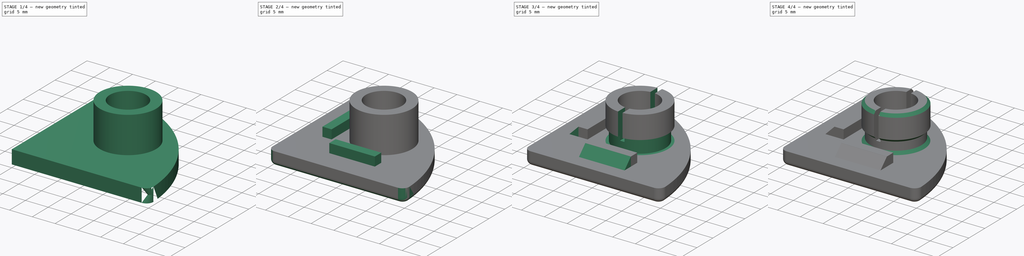
[diagram: build sequence overview — one tinted view per stage of 4, left to right]
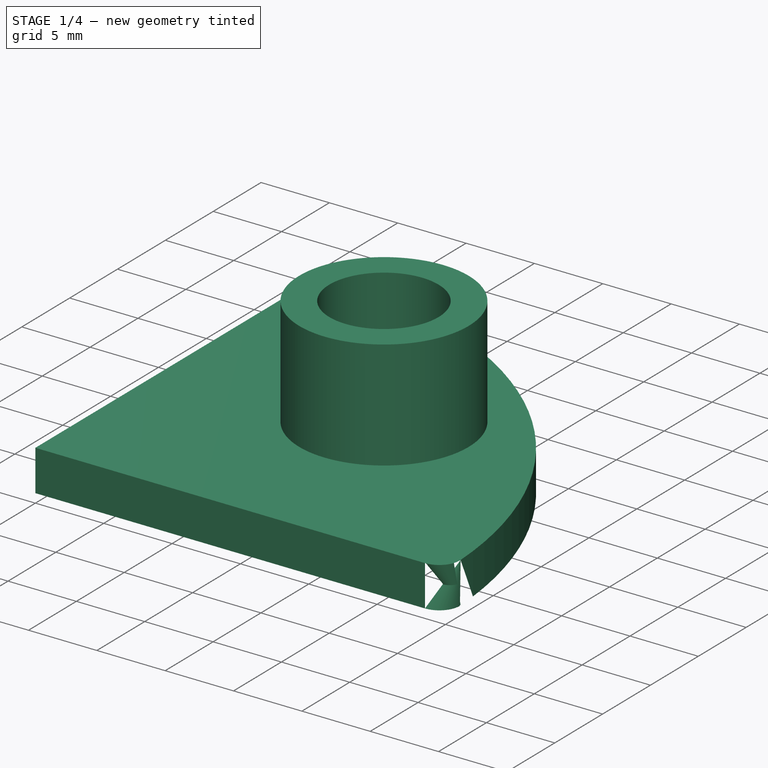
[diagram: stage 1 of 4 — iso view after this stage's code; geometry added in this stage tinted green]
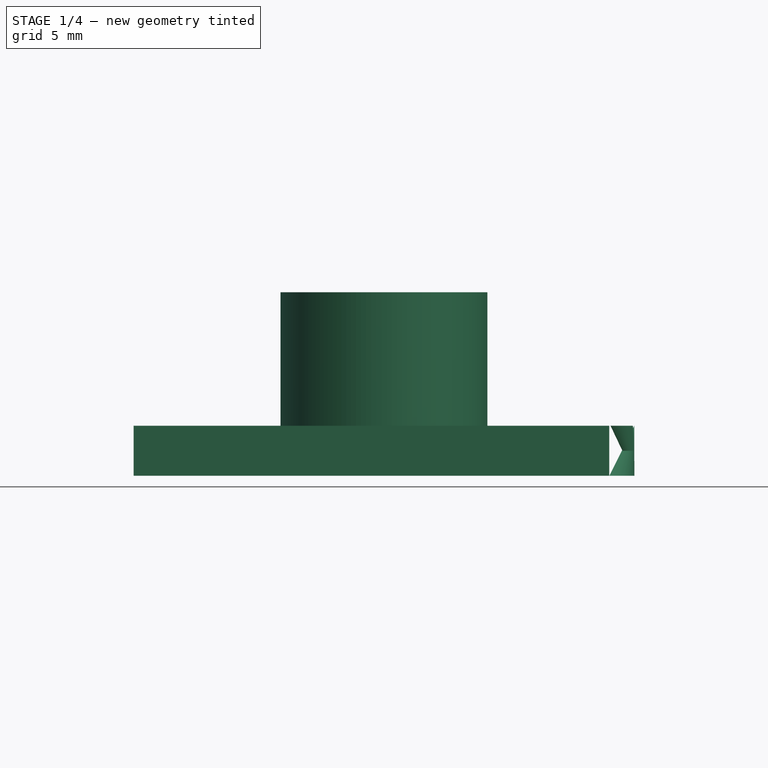
[diagram: stage 1 of 4 — front view after this stage's code; geometry added in this stage tinted green]
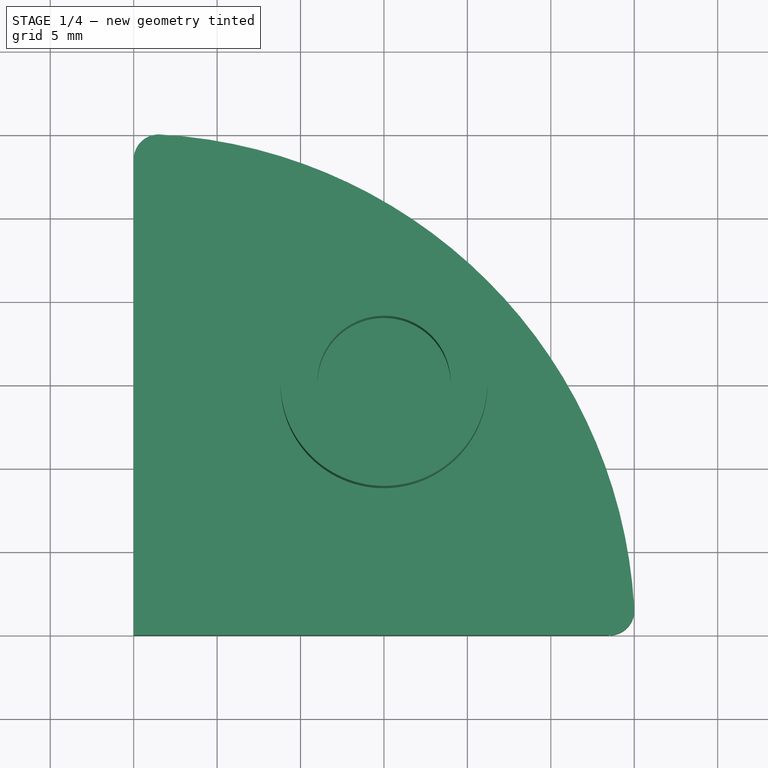
[diagram: stage 1 of 4 — top view after this stage's code; geometry added in this stage tinted green]
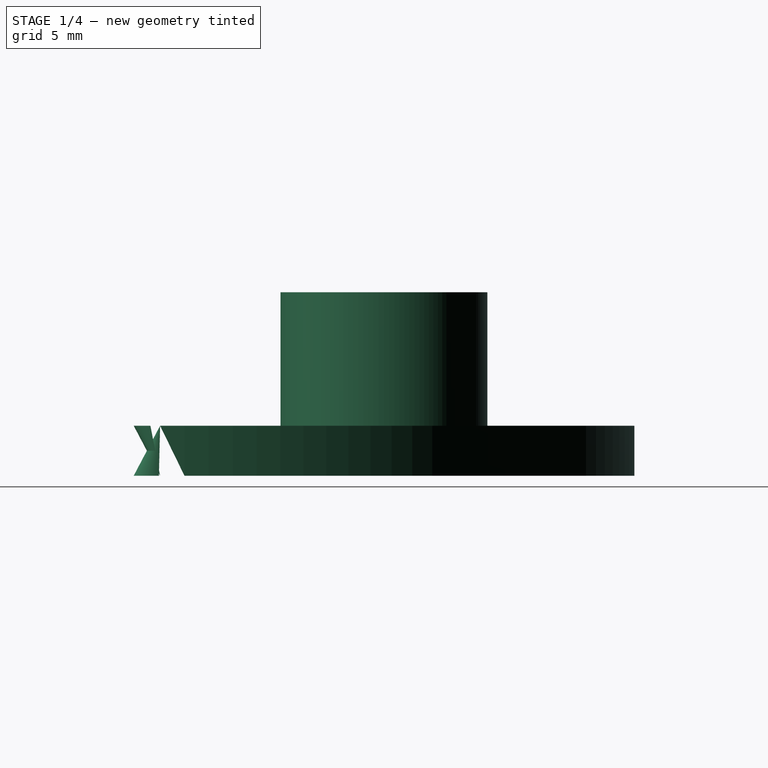
[diagram: stage 1 of 4 — right view after this stage's code; geometry added in this stage tinted green]
FCSTD DOCUMENT  (FreeCAD 0.17R13522 (Git))
Label: Cover_3030_rounded_botto_v2m
License: All rights reserved
LicenseURL: http://en.wikipedia.org/wiki/All_rights_reserved
objects: Sketcher::SketchObject×5, PartDesign::Pad×3, PartDesign::Chamfer×3, PartDesign::Fillet×2, PartDesign::Pocket×2, PartDesign::Body×1
note: 21 computed .brp shape members not serialized (recipe doc carries the construction recipe); baked Part::Feature solids carry a one-line shape summary decoded from their .brp

FEATURE [Sketcher::SketchObject] Sketch
  MapMode = 5
  Support = -> [XY_Plane]
  sketch-geometry (2):
    g0: Circle CenterX=15 CenterY=15 CenterZ=0 NormalX=0 NormalY=0 NormalZ=1 AngleXU=0 Radius=6.2
    g1: Circle CenterX=15 CenterY=15 CenterZ=0 NormalX=0 NormalY=0 NormalZ=1 AngleXU=0 Radius=4
  constraints (5):
    c: Radius(g0) = 6.2
    c: DistanceX(g0) = 15
    c: DistanceY(g0) = 15
    c: Coincident(g1,g0)
    c: Radius(g1) = 4
FEATURE [PartDesign::Pad] Pad
  Length = 8
  Length2 = 100
  Profile = -> Sketch
  Type = 0
FEATURE [Sketcher::SketchObject] Sketch001
  MapMode = 5
  Placement = pos=(0,0,0) rot=(1,0,0;3.14159rad)
  Support = -> [Pad]
  sketch-geometry (5):
    g0: LineSegment StartX=0 StartY=-28.5047 StartZ=0 EndX=0 EndY=0 EndZ=0
    g1: LineSegment StartX=0 StartY=0 StartZ=0 EndX=28.5047 EndY=0 EndZ=0
    g2: ArcOfCircle CenterX=-0.11 CenterY=0.11 CenterZ=0 NormalX=0 NormalY=0 NormalZ=1 AngleXU=0 Radius=30.16 StartAngle=4.76859 EndAngle=6.22698
    g3: ArcOfCircle CenterX=1.5 CenterY=-28.5047 CenterZ=0 NormalX=0 NormalY=0 NormalZ=1 AngleXU=0 Radius=1.5 StartAngle=3.14159 EndAngle=4.76859
    g4: ArcOfCircle CenterX=28.5047 CenterY=-1.5 CenterZ=0 NormalX=0 NormalY=0 NormalZ=1 AngleXU=0 Radius=1.5 StartAngle=6.22698 EndAngle=7.85398
  constraints (14):
    c: PointOnObject(g0,g-2)
    c: Vertical(g0)
    c: Coincident(g1,g-1)
    c: PointOnObject(g1,g-1)
    c: Radius(g2) = 30.16
    c: DistanceX(g2) = -0.11
    c: DistanceY(g2) = 0.11
    c: Equal(g3,g4)
    c: Radius(g3) = 1.5
    c: Tangent(g3,g2) = -1.5708
    c: Tangent(g4,g2) = -1.5708
    c: Tangent(g3,g0) = 1.5708
    c: Tangent(g4,g1) = 1.5708
    c: Equal(g1,g0)
FEATURE [PartDesign::Pad] Pad001
  BaseFeature = -> Pad
  Length = 3
  Length2 = 100
  Profile = -> Sketch001
  Type = 0
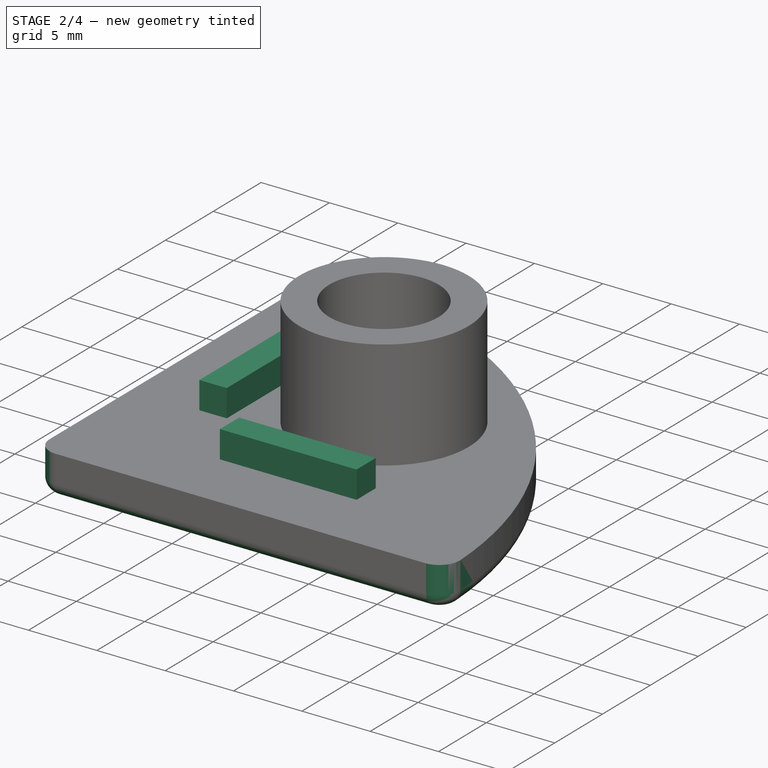
[diagram: stage 2 of 4 — iso view after this stage's code; geometry added in this stage tinted green]
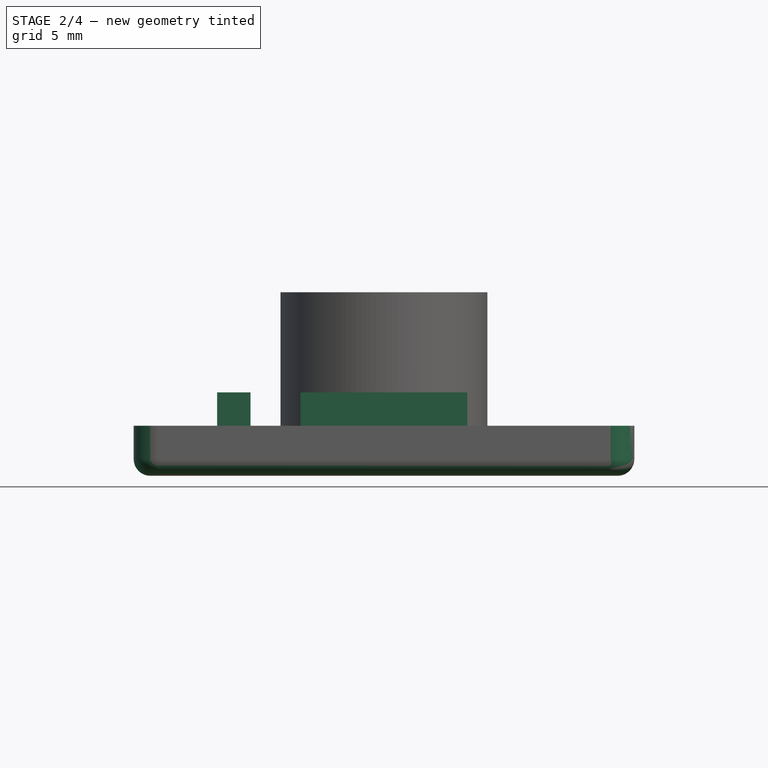
[diagram: stage 2 of 4 — front view after this stage's code; geometry added in this stage tinted green]
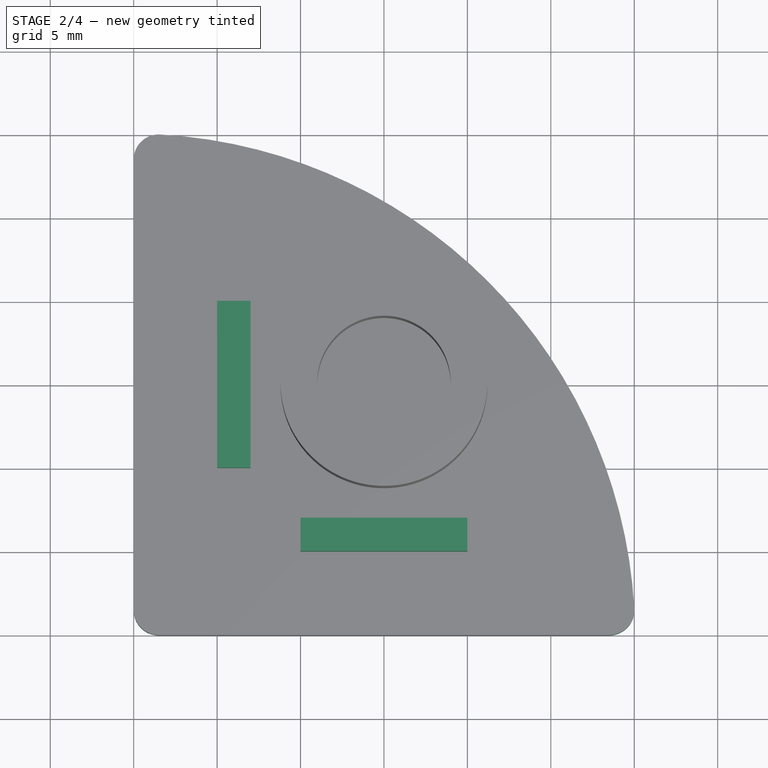
[diagram: stage 2 of 4 — top view after this stage's code; geometry added in this stage tinted green]
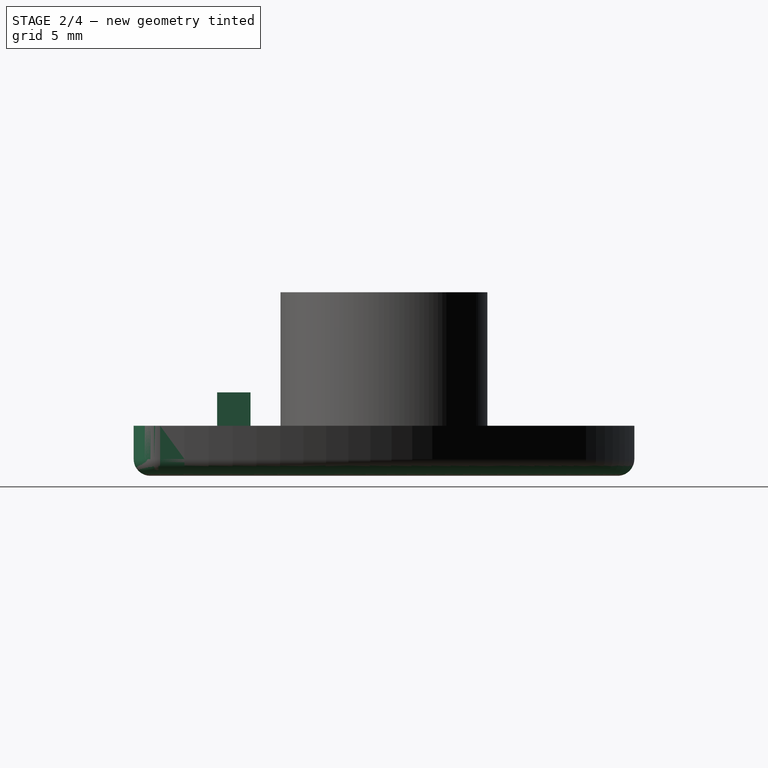
[diagram: stage 2 of 4 — right view after this stage's code; geometry added in this stage tinted green]
FEATURE [PartDesign::Fillet] Fillet
  Base = -> Pad001 [Edge15]
  BaseFeature = -> Pad001
  Radius = 1.5
FEATURE [PartDesign::Fillet] Fillet001
  Base = -> Fillet [Face9]
  BaseFeature = -> Fillet
  Radius = 1
FEATURE [Sketcher::SketchObject] Sketch002
  MapMode = 5
  Support = -> [Fillet001]
  sketch-geometry (8):
    g0: LineSegment StartX=5 StartY=20 StartZ=0 EndX=7 EndY=20 EndZ=0
    g1: LineSegment StartX=7 StartY=20 StartZ=0 EndX=7 EndY=10 EndZ=0
    g2: LineSegment StartX=7 StartY=10 StartZ=0 EndX=5 EndY=10 EndZ=0
    g3: LineSegment StartX=5 StartY=10 StartZ=0 EndX=5 EndY=20 EndZ=0
    g4: LineSegment StartX=10 StartY=7 StartZ=0 EndX=20 EndY=7 EndZ=0
    g5: LineSegment StartX=20 StartY=7 StartZ=0 EndX=20 EndY=5 EndZ=0
    g6: LineSegment StartX=20 StartY=5 StartZ=0 EndX=10 EndY=5 EndZ=0
    g7: LineSegment StartX=10 StartY=5 StartZ=0 EndX=10 EndY=7 EndZ=0
  constraints (24):
    c: Coincident(g0,g1)
    c: Coincident(g1,g2)
    c: Coincident(g2,g3)
    c: Coincident(g3,g0)
    c: Horizontal(g0)
    c: Horizontal(g2)
    c: Vertical(g1)
    c: Vertical(g3)
    c: Coincident(g4,g5)
    c: Coincident(g5,g6)
    c: Coincident(g6,g7)
    c: Coincident(g7,g4)
    c: Horizontal(g4)
    c: Horizontal(g6)
    c: Vertical(g5)
    c: Vertical(g7)
    c: Equal(g3,g6)
    c: Equal(g2,g7)
    c: DistanceX(g1) = 7
    c: DistanceY(g1) = 10
    c: DistanceX(g4) = 10
    c: DistanceY(g4) = 7
    c: DistanceY(g3,g3) = 10
    c: DistanceX(g0,g0) = 2
FEATURE [PartDesign::Pad] Pad002
  BaseFeature = -> Fillet001
  Length = 2
  Length2 = 100
  Profile = -> Sketch002
  Type = 0
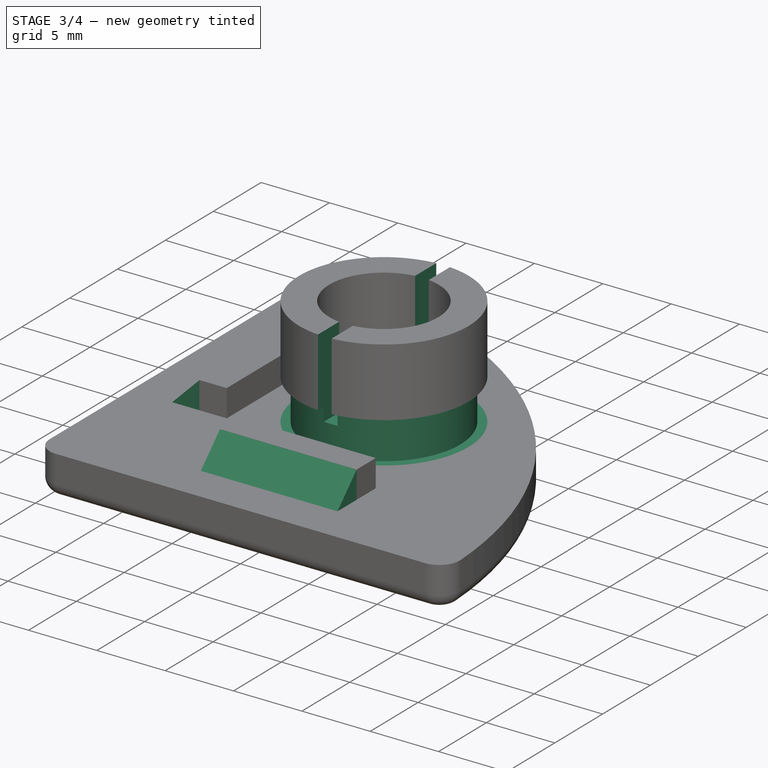
[diagram: stage 3 of 4 — iso view after this stage's code; geometry added in this stage tinted green]
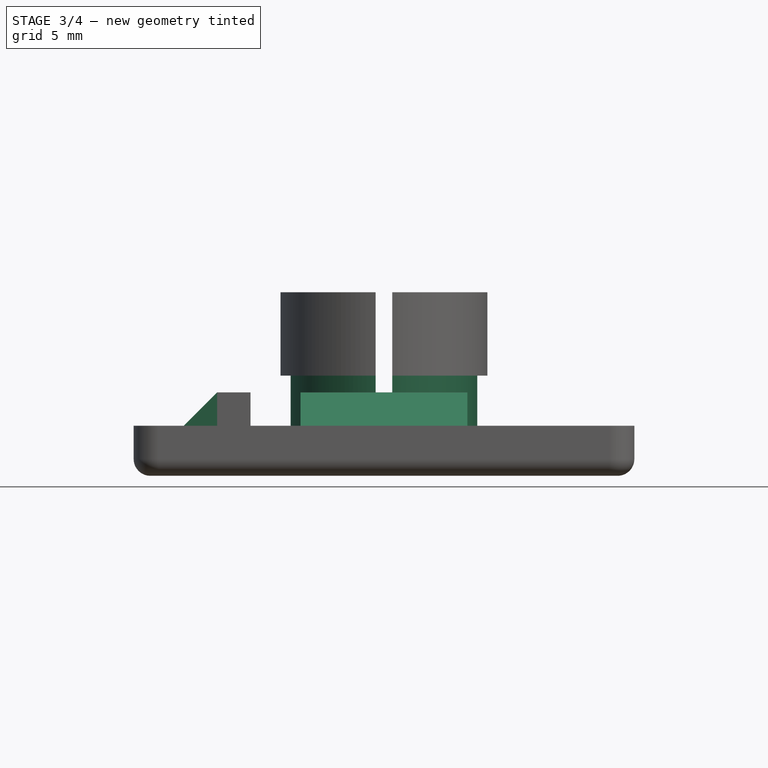
[diagram: stage 3 of 4 — front view after this stage's code; geometry added in this stage tinted green]
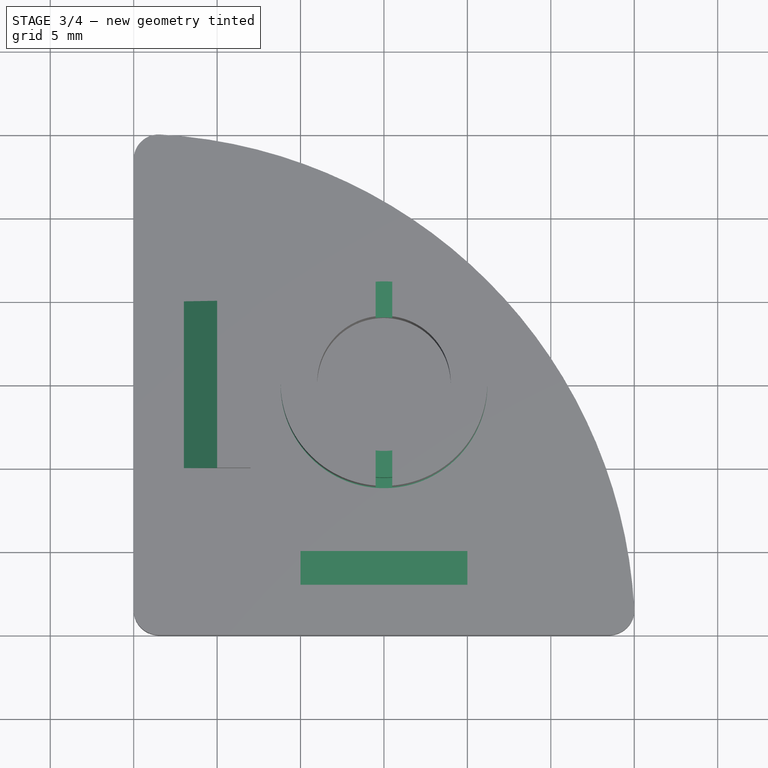
[diagram: stage 3 of 4 — top view after this stage's code; geometry added in this stage tinted green]
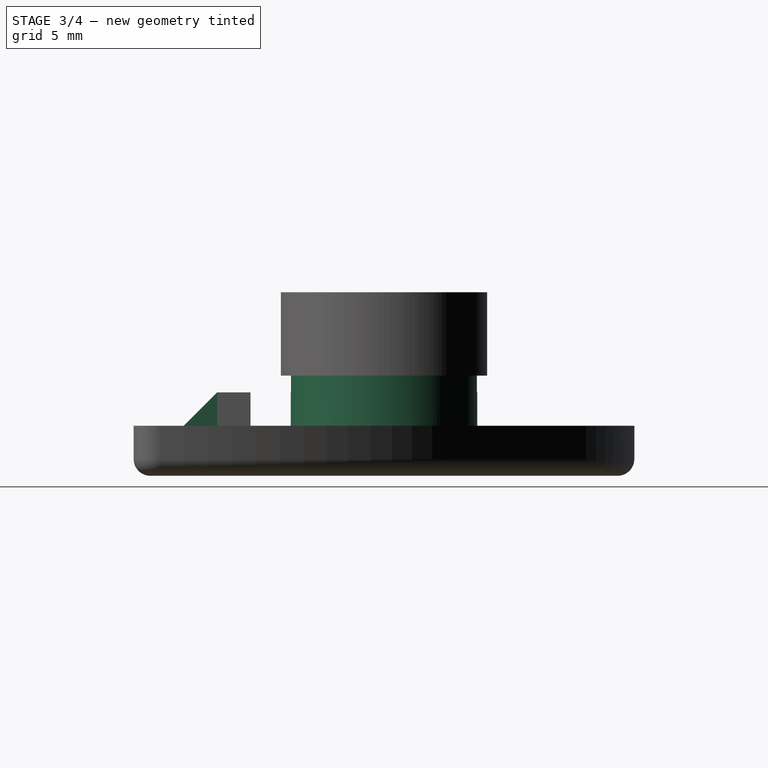
[diagram: stage 3 of 4 — right view after this stage's code; geometry added in this stage tinted green]
FEATURE [PartDesign::Chamfer] Chamfer
  Base = -> Pad002 [Edge21,Edge15]
  BaseFeature = -> Pad002
  Size = 1.99
FEATURE [Sketcher::SketchObject] Sketch003
  MapMode = 5
  sketch-geometry (2):
    g0: Circle CenterX=15 CenterY=15 CenterZ=0 NormalX=0 NormalY=0 NormalZ=1 AngleXU=0 Radius=5.59
    g1: Circle CenterX=15 CenterY=15 CenterZ=0 NormalX=0 NormalY=0 NormalZ=1 AngleXU=0 Radius=6.2
  constraints (5):
    c: DistanceX(g0) = 15
    c: DistanceY(g0) = 15
    c: Radius(g0) = 5.59
    c: Coincident(g1,g0)
    c: Radius(g1) = 6.2
FEATURE [PartDesign::Pocket] Pocket
  BaseFeature = -> Chamfer
  Length = 3
  Length2 = 100
  Profile = -> Sketch003
  Reversed = true
  Type = 0
FEATURE [Sketcher::SketchObject] Sketch004
  MapMode = 5
  Placement = pos=(0,0,8) rot=(0,0,1;0rad)
  Support = -> [Pocket]
  sketch-geometry (4):
    g0: LineSegment StartX=14.5 StartY=22 StartZ=0 EndX=15.5 EndY=22 EndZ=0
    g1: LineSegment StartX=15.5 StartY=22 StartZ=0 EndX=15.5 EndY=8 EndZ=0
    g2: LineSegment StartX=15.5 StartY=8 StartZ=0 EndX=14.5 EndY=8 EndZ=0
    g3: LineSegment StartX=14.5 StartY=8 StartZ=0 EndX=14.5 EndY=22 EndZ=0
  constraints (12):
    c: Coincident(g0,g1)
    c: Coincident(g1,g2)
    c: Coincident(g2,g3)
    c: Coincident(g3,g0)
    c: Horizontal(g0)
    c: Horizontal(g2)
    c: Vertical(g1)
    c: Vertical(g3)
    c: DistanceX(g0,g0) = 1
    c: DistanceY(g1,g1) = 14
    c: DistanceX(g2) = 14.5
    c: DistanceY(g2) = 8
FEATURE [PartDesign::Pocket] Pocket001
  BaseFeature = -> Pocket
  Length = 6
  Length2 = 100
  Profile = -> Sketch004
  Type = 0
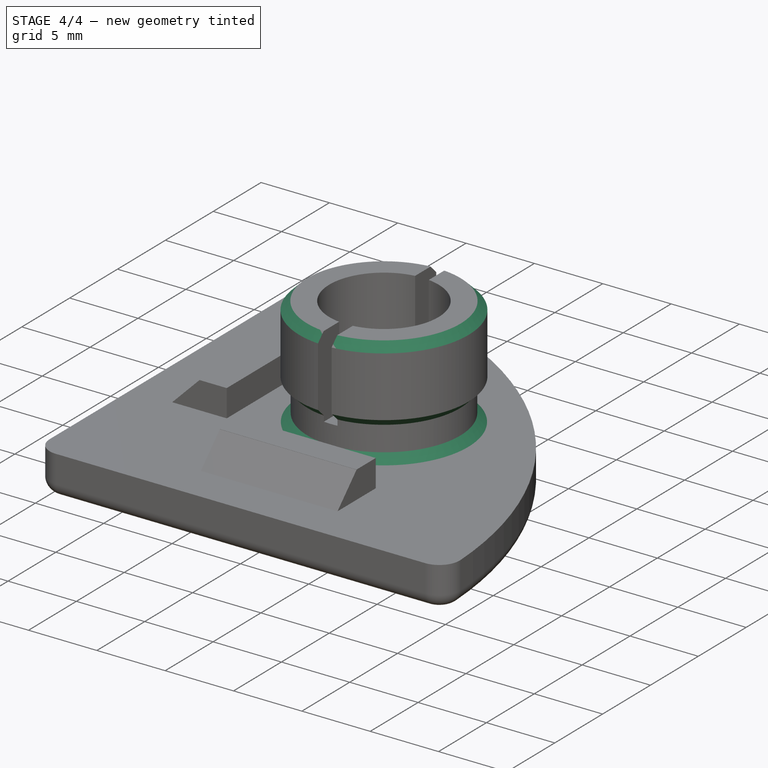
[diagram: stage 4 of 4 — iso view after this stage's code; geometry added in this stage tinted green]
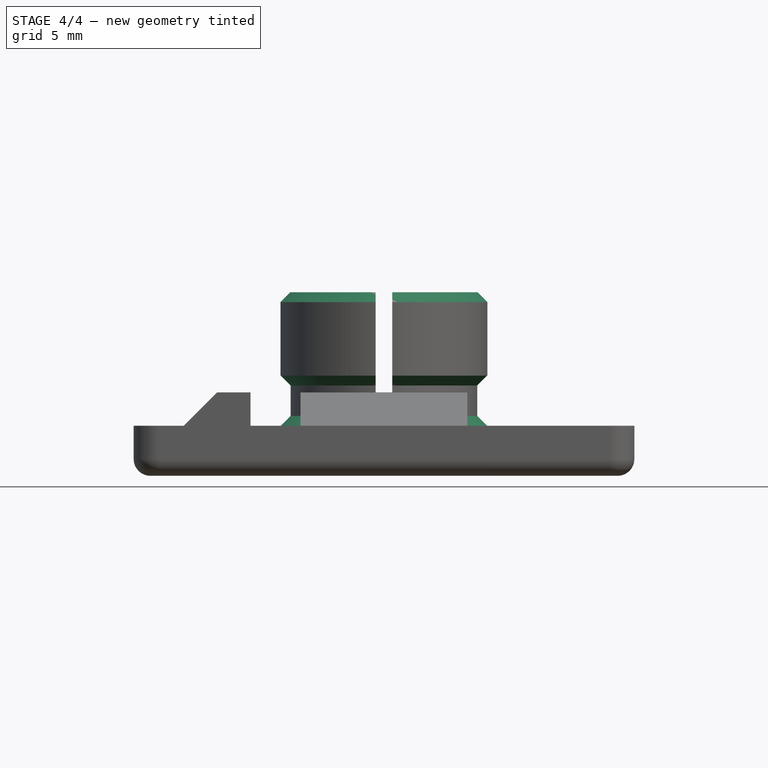
[diagram: stage 4 of 4 — front view after this stage's code; geometry added in this stage tinted green]
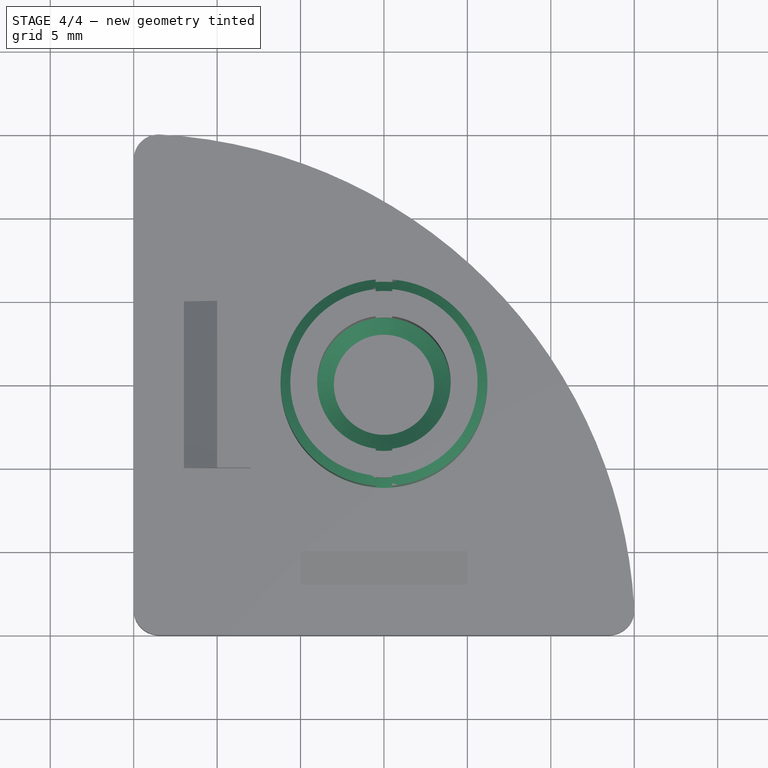
[diagram: stage 4 of 4 — top view after this stage's code; geometry added in this stage tinted green]
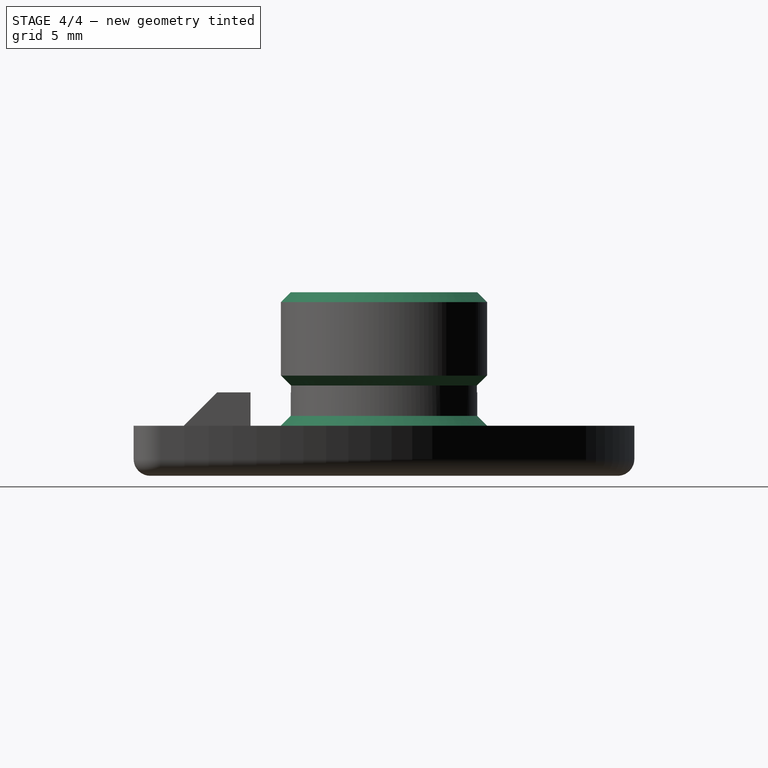
[diagram: stage 4 of 4 — right view after this stage's code; geometry added in this stage tinted green]
FEATURE [PartDesign::Chamfer] Chamfer001
  Base = -> Pocket001 [Edge104,Edge75,Edge71,Edge42,Edge110]
  BaseFeature = -> Pocket001
  Size = 0.59
FEATURE [PartDesign::Chamfer] Chamfer004
  Base = -> Chamfer001 [Edge123]
  BaseFeature = -> Chamfer001
  Size = 1
FEATURE [PartDesign::Body] Body
  Group = -> [Sketch,Pad,Sketch001,Pad001,Fillet,Fillet001,Sketch002,Pad002,Chamfer,Sketch003,Pocket,Sketch004,Pocket001,Chamfer001,Chamfer004]
  Origin = -> Origin
  Tip = -> Chamfer004
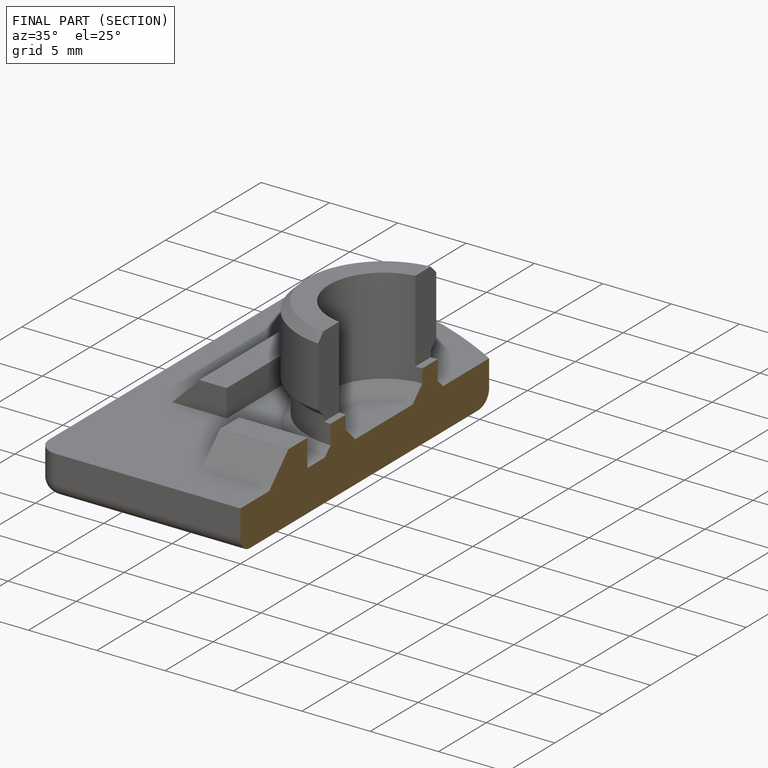
[diagram: finished part — half-section view (interior)]
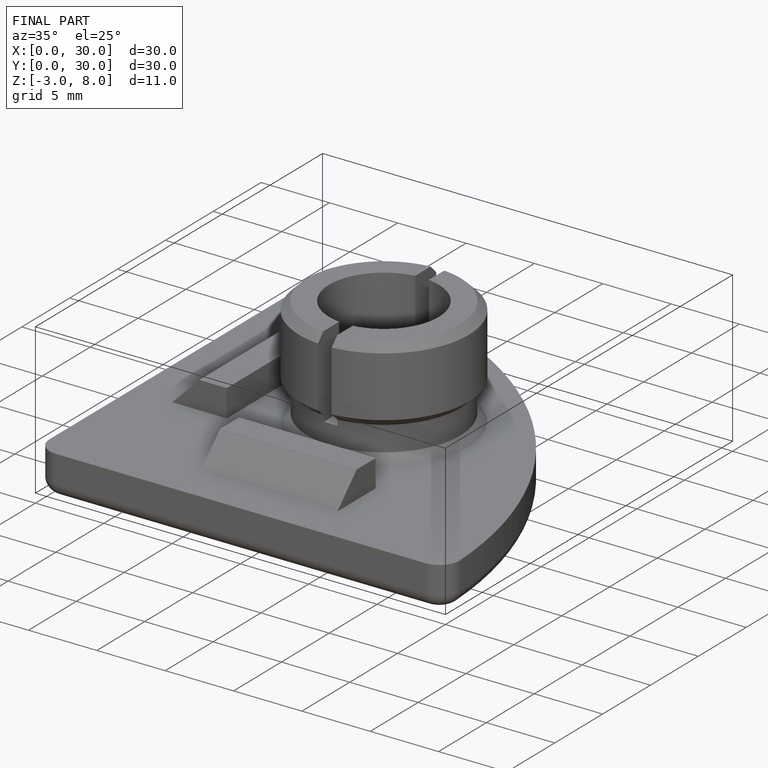
[diagram: finished part — iso view with bounding-box wireframe]
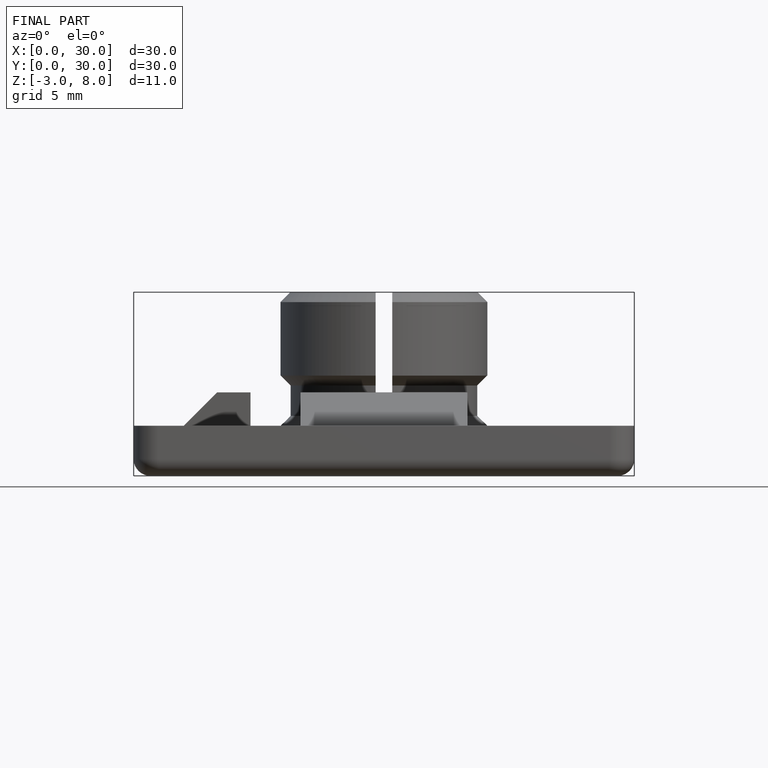
[diagram: finished part — front view with bounding-box wireframe]
